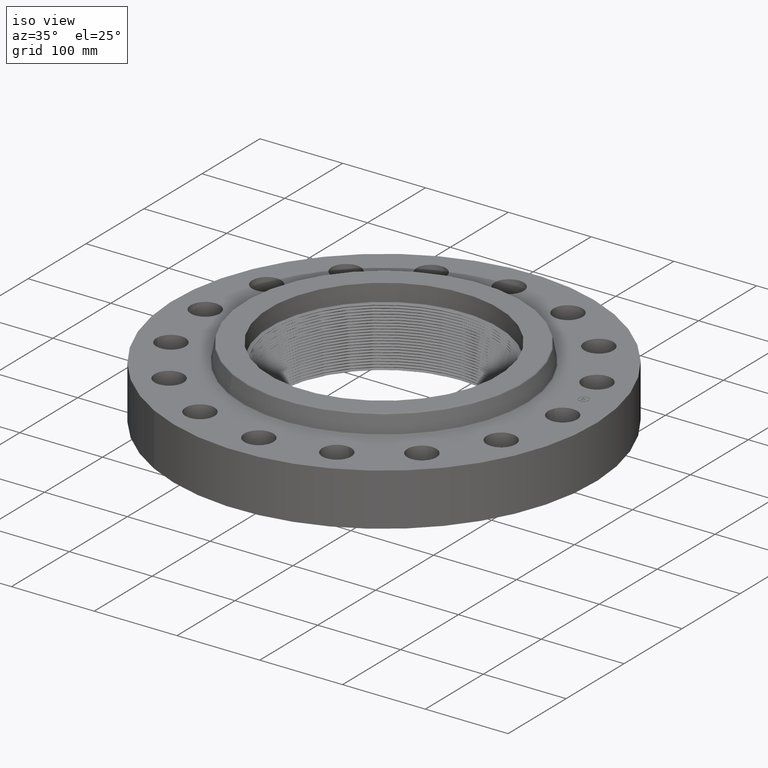
[diagram: clean part render]
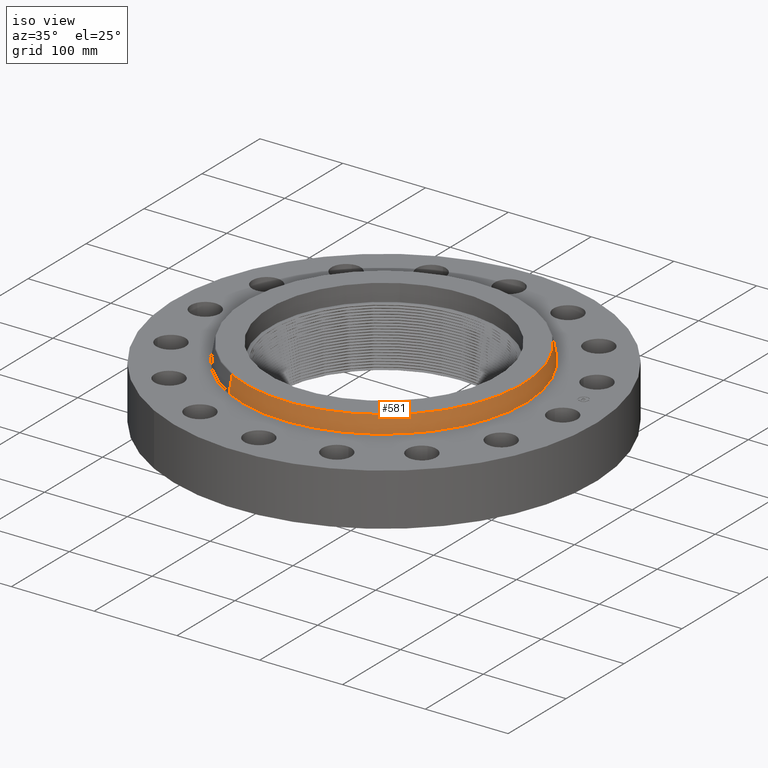
[diagram: same view with one face highlighted and labeled with its STEP entity id]
A machine part, iso view. The second image highlights one B-rep face of the part: STEP entity #581.
In plain terms, the highlighted conical surface has half-angle 10 deg.
Its self-contained STEP definition (entity closure, byte-faithful):
#517=AXIS2_PLACEMENT_3D('Circle Axis2P3D',#515,#516,$) ;
#554=AXIS2_PLACEMENT_3D('Cone Axis2P3D',#551,#552,#553) ;
#565=AXIS2_PLACEMENT_3D('Circle Axis2P3D',#563,#564,$) ;
#512=CARTESIAN_POINT('Vertex',(3.2319310139,5.91601003837,2.54958110935)) ;
#515=CARTESIAN_POINT('Axis2P3D Location',(0.,0.,2.54958110935)) ;
#519=CARTESIAN_POINT('Vertex',(-3.2319310139,-5.91601003837,2.54958110935)) ;
#551=CARTESIAN_POINT('Axis2P3D Location',(0.,0.,3.33041889067)) ;
#556=CARTESIAN_POINT('Line Origine',(3.1989266962,5.85559604006,2.94000000001)) ;
#560=CARTESIAN_POINT('Vertex',(3.16592237851,5.79518204175,3.33041889067)) ;
#563=CARTESIAN_POINT('Axis2P3D Location',(0.,0.,3.33041889067)) ;
#567=CARTESIAN_POINT('Vertex',(-3.16592237851,-5.79518204175,3.33041889067)) ;
#570=CARTESIAN_POINT('Line Origine',(-3.1989266962,-5.85559604006,2.94000000001)) ;
#516=DIRECTION('Axis2P3D Direction',(0.,0.,-0.0393700787402)) ;
#552=DIRECTION('Axis2P3D Direction',(0.,0.,-0.0393700787402)) ;
#553=DIRECTION('Axis2P3D XDirection',(-0.0188750212049,-0.0345504945626,0.)) ;
#557=DIRECTION('Vector Direction',(0.00327761303565,0.00599963041829,-0.03877195878)) ;
#564=DIRECTION('Axis2P3D Direction',(0.,0.,-0.0393700787402)) ;
#571=DIRECTION('Vector Direction',(-0.00327761303565,-0.00599963041829,-0.03877195878)) ;
#558=VECTOR('Line Direction',#557,0.0393700787402) ;
#572=VECTOR('Line Direction',#571,0.0393700787402) ;
#576=ORIENTED_EDGE('',*,*,#521,.F.) ;
#577=ORIENTED_EDGE('',*,*,#562,.T.) ;
#578=ORIENTED_EDGE('',*,*,#569,.T.) ;
#579=ORIENTED_EDGE('',*,*,#574,.F.) ;
#581=ADVANCED_FACE('PartBody',(#580),#555,.T.) ;
#518=CIRCLE('generated circle',#517,6.74125751272) ;
#566=CIRCLE('generated circle',#565,6.60357474431) ;
#555=CONICAL_SURFACE('Cone',#554,6.60357474431,0.174532925199) ;
#521=EDGE_CURVE('',#513,#520,#518,.T.) ;
#562=EDGE_CURVE('',#513,#561,#559,.F.) ;
#569=EDGE_CURVE('',#561,#568,#566,.T.) ;
#574=EDGE_CURVE('',#520,#568,#573,.F.) ;
#575=EDGE_LOOP('',(#576,#577,#578,#579)) ;
#580=FACE_OUTER_BOUND('',#575,.T.) ;
#559=LINE('Line',#556,#558) ;
#573=LINE('Line',#570,#572) ;
#513=VERTEX_POINT('',#512) ;
#520=VERTEX_POINT('',#519) ;
#561=VERTEX_POINT('',#560) ;
#568=VERTEX_POINT('',#567) ;